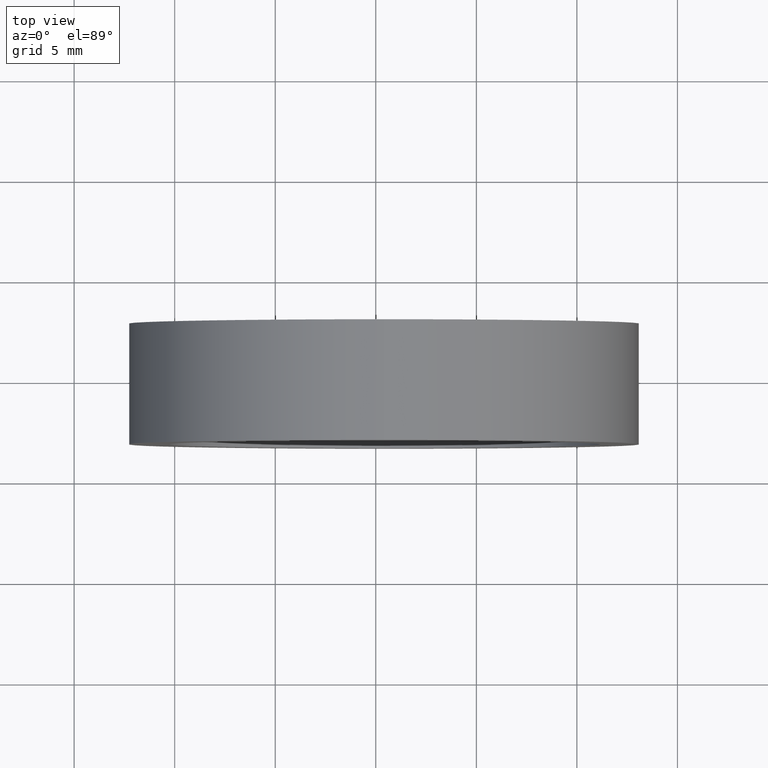
[diagram: clean part render]
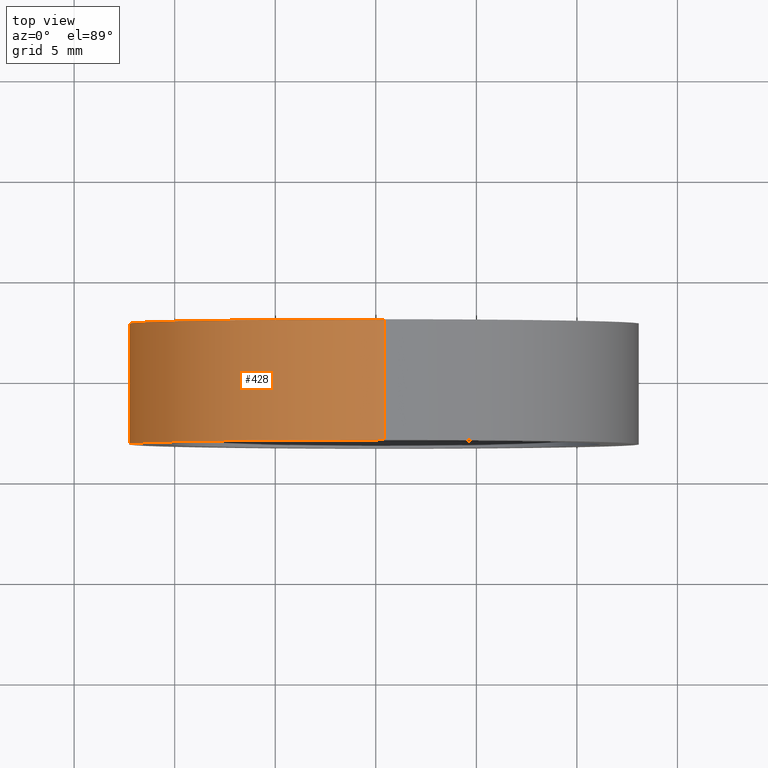
[diagram: same view with one face highlighted and labeled with its STEP entity id]
A machine part, top view. The second image highlights one B-rep face of the part: STEP entity #428.
In plain terms, the highlighted cylindrical surface (partial cylindrical patch) has radius 12.7 mm, axis along (-0, -1, -0).
Its self-contained STEP definition (entity closure, byte-faithful):
#4 = DIRECTION ( 'NONE',  ( -0.0000000000000000000, -1.000000000000000000, -0.0000000000000000000 ) ) ;
#29 = DIRECTION ( 'NONE',  ( 0.0000000000000000000, 0.0000000000000000000, -1.000000000000000000 ) ) ;
#58 = CARTESIAN_POINT ( 'NONE',  ( -34.59164044491552659, -8.259296399802728672, 0.0000000000000000000 ) ) ;
#59 = EDGE_CURVE ( 'NONE', #617, #464, #636, .T. ) ;
#97 = DIRECTION ( 'NONE',  ( -0.0000000000000000000, -1.000000000000000000, -0.0000000000000000000 ) ) ;
#102 = CARTESIAN_POINT ( 'NONE',  ( -34.59164044491552659, -2.259296399802728228, -12.69999999999999929 ) ) ;
#158 = CARTESIAN_POINT ( 'NONE',  ( -34.59164044491552659, -2.259296399802728228, 0.0000000000000000000 ) ) ;
#232 = ORIENTED_EDGE ( 'NONE', *, *, #265, .T. ) ;
#265 = EDGE_CURVE ( 'NONE', #637, #304, #328, .T. ) ;
#278 = CARTESIAN_POINT ( 'NONE',  ( -34.59164044491552659, -8.259296399802728672, -12.69999999999999929 ) ) ;
#304 = VERTEX_POINT ( 'NONE', #102 ) ;
#328 = CIRCLE ( 'NONE', #704, 12.69999999999999929 ) ;
#331 = DIRECTION ( 'NONE',  ( -0.0000000000000000000, -1.000000000000000000, -0.0000000000000000000 ) ) ;
#343 = LINE ( 'NONE', #473, #579 ) ;
#373 = ORIENTED_EDGE ( 'NONE', *, *, #708, .F. ) ;
#375 = AXIS2_PLACEMENT_3D ( 'NONE', #58, #781, #847 ) ;
#405 = CARTESIAN_POINT ( 'NONE',  ( -34.59164044491552659, -8.259296399802728672, 12.69999999999999929 ) ) ;
#427 = VECTOR ( 'NONE', #4, 1000.000000000000000 ) ;
#428 = ADVANCED_FACE ( 'NONE', ( #652 ), #721, .T. ) ;
#439 = DIRECTION ( 'NONE',  ( -0.0000000000000000000, -1.000000000000000000, -0.0000000000000000000 ) ) ;
#464 = VERTEX_POINT ( 'NONE', #278 ) ;
#468 = CARTESIAN_POINT ( 'NONE',  ( -34.59164044491552659, -8.259296399802728672, 12.69999999999999929 ) ) ;
#473 = CARTESIAN_POINT ( 'NONE',  ( -34.59164044491552659, -8.259296399802728672, -12.69999999999999929 ) ) ;
#552 = ORIENTED_EDGE ( 'NONE', *, *, #59, .F. ) ;
#559 = AXIS2_PLACEMENT_3D ( 'NONE', #647, #439, #706 ) ;
#579 = VECTOR ( 'NONE', #331, 1000.000000000000000 ) ;
#601 = EDGE_LOOP ( 'NONE', ( #373, #232, #700, #552 ) ) ;
#611 = LINE ( 'NONE', #405, #427 ) ;
#617 = VERTEX_POINT ( 'NONE', #468 ) ;
#636 = CIRCLE ( 'NONE', #559, 12.69999999999999929 ) ;
#637 = VERTEX_POINT ( 'NONE', #783 ) ;
#647 = CARTESIAN_POINT ( 'NONE',  ( -34.59164044491552659, -8.259296399802728672, 0.0000000000000000000 ) ) ;
#652 = FACE_OUTER_BOUND ( 'NONE', #601, .T. ) ;
#696 = EDGE_CURVE ( 'NONE', #304, #464, #343, .T. ) ;
#700 = ORIENTED_EDGE ( 'NONE', *, *, #696, .T. ) ;
#704 = AXIS2_PLACEMENT_3D ( 'NONE', #158, #97, #29 ) ;
#706 = DIRECTION ( 'NONE',  ( 0.0000000000000000000, 0.0000000000000000000, -1.000000000000000000 ) ) ;
#708 = EDGE_CURVE ( 'NONE', #637, #617, #611, .T. ) ;
#721 = CYLINDRICAL_SURFACE ( 'NONE', #375, 12.69999999999999929 ) ;
#781 = DIRECTION ( 'NONE',  ( -0.0000000000000000000, -1.000000000000000000, -0.0000000000000000000 ) ) ;
#783 = CARTESIAN_POINT ( 'NONE',  ( -34.59164044491552659, -2.259296399802728228, 12.69999999999999929 ) ) ;
#847 = DIRECTION ( 'NONE',  ( 0.0000000000000000000, 0.0000000000000000000, -1.000000000000000000 ) ) ;